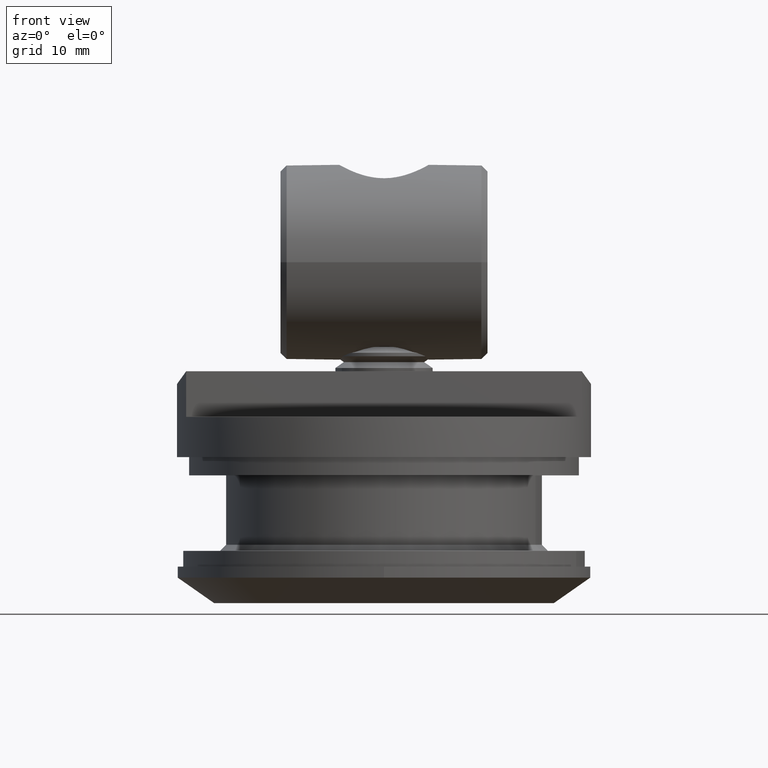
[diagram: clean part render]
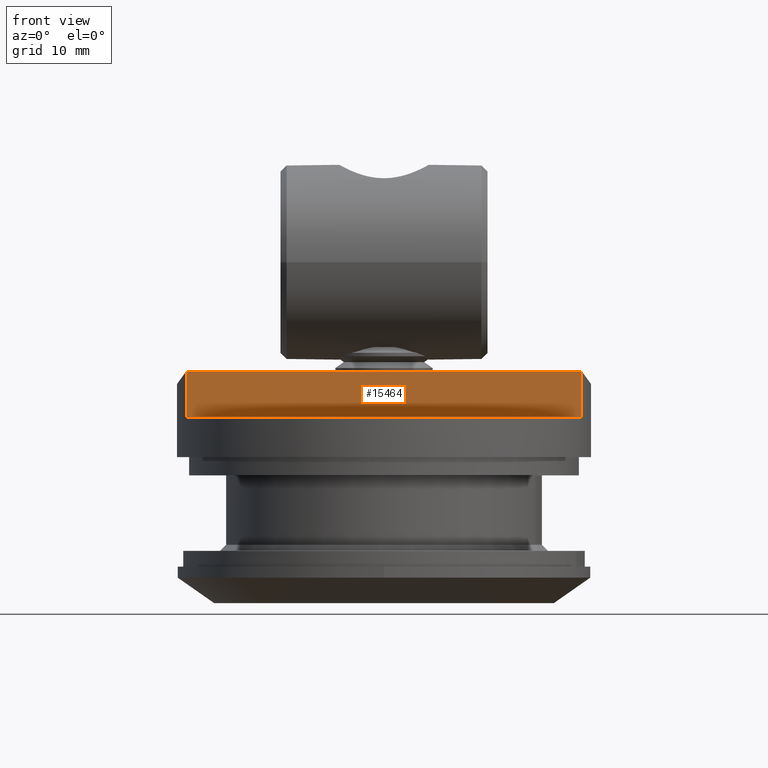
[diagram: same view with one face highlighted and labeled with its STEP entity id]
A machine part, front view. The second image highlights one B-rep face of the part: STEP entity #15464.
In plain terms, the highlighted planar face has unit normal (0, 1, 0).
Its self-contained STEP definition (entity closure, byte-faithful):
#283 = ORIENTED_EDGE ( 'NONE', *, *, #318, .T. ) ;
#318 = EDGE_CURVE ( 'NONE', #17113, #9149, #7985, .T. ) ;
#1011 = CARTESIAN_POINT ( 'NONE',  ( -17.00000000000000000, -5.000000000000000000, 7.043560762610400900 ) ) ;
#1575 = CARTESIAN_POINT ( 'NONE',  ( 16.24807680927191800, -5.000000000000008900, 8.300000000000000700 ) ) ;
#1731 = DIRECTION ( 'NONE',  ( -0.0000000000000000000, -0.0000000000000000000, -1.000000000000000000 ) ) ;
#2877 = VECTOR ( 'NONE', #5787, 1000.000000000000000 ) ;
#5787 = DIRECTION ( 'NONE',  ( -0.0000000000000000000, -0.0000000000000000000, -1.000000000000000000 ) ) ;
#6449 = PLANE ( 'NONE',  #17559 ) ;
#6908 = DIRECTION ( 'NONE',  ( -1.000000000000000000, 0.0000000000000000000, 0.0000000000000000000 ) ) ;
#7084 = VECTOR ( 'NONE', #6908, 1000.000000000000000 ) ;
#7373 = CARTESIAN_POINT ( 'NONE',  ( -16.24807680927192200, -5.000000000000000000, 3.299999999999999800 ) ) ;
#7769 = CARTESIAN_POINT ( 'NONE',  ( -16.24807680927192200, -5.000000000000000000, 7.043560762610401800 ) ) ;
#7985 = LINE ( 'NONE', #21166, #2877 ) ;
#8509 = LINE ( 'NONE', #7373, #11469 ) ;
#8959 = LINE ( 'NONE', #1575, #12189 ) ;
#9149 = VERTEX_POINT ( 'NONE', #19273 ) ;
#9358 = VERTEX_POINT ( 'NONE', #21312 ) ;
#9496 = LINE ( 'NONE', #1011, #7084 ) ;
#10908 = DIRECTION ( 'NONE',  ( 1.000000000000000000, 0.0000000000000000000, 0.0000000000000000000 ) ) ;
#11150 = ORIENTED_EDGE ( 'NONE', *, *, #15788, .T. ) ;
#11469 = VECTOR ( 'NONE', #10908, 1000.000000000000000 ) ;
#11684 = FACE_OUTER_BOUND ( 'NONE', #22344, .T. ) ;
#11850 = EDGE_CURVE ( 'NONE', #9149, #9358, #8509, .T. ) ;
#12189 = VECTOR ( 'NONE', #1731, 1000.000000000000000 ) ;
#12647 = VERTEX_POINT ( 'NONE', #18064 ) ;
#13080 = CARTESIAN_POINT ( 'NONE',  ( -16.24807680927192200, -5.000000000000000000, 8.300000000000000700 ) ) ;
#15464 = ADVANCED_FACE ( 'NONE', ( #11684 ), #6449, .F. ) ;
#15510 = EDGE_CURVE ( 'NONE', #12647, #9358, #8959, .T. ) ;
#15788 = EDGE_CURVE ( 'NONE', #12647, #17113, #9496, .T. ) ;
#16452 = ORIENTED_EDGE ( 'NONE', *, *, #15510, .F. ) ;
#16556 = DIRECTION ( 'NONE',  ( 0.0000000000000000000, -0.0000000000000000000, 1.000000000000000000 ) ) ;
#17113 = VERTEX_POINT ( 'NONE', #7769 ) ;
#17559 = AXIS2_PLACEMENT_3D ( 'NONE', #13080, #18507, #16556 ) ;
#18064 = CARTESIAN_POINT ( 'NONE',  ( 16.24807680927191500, -5.000000000000004400, 7.043560762610400900 ) ) ;
#18507 = DIRECTION ( 'NONE',  ( 0.0000000000000000000, 1.000000000000000000, 0.0000000000000000000 ) ) ;
#19273 = CARTESIAN_POINT ( 'NONE',  ( -16.24807680927192500, -5.000000000000000900, 3.299999999999999800 ) ) ;
#21166 = CARTESIAN_POINT ( 'NONE',  ( -16.24807680927192200, -5.000000000000000000, 8.300000000000000700 ) ) ;
#21312 = CARTESIAN_POINT ( 'NONE',  ( 16.24807680927191800, -5.000000000000008900, 3.299999999999999800 ) ) ;
#21711 = ORIENTED_EDGE ( 'NONE', *, *, #11850, .T. ) ;
#22344 = EDGE_LOOP ( 'NONE', ( #16452, #11150, #283, #21711 ) ) ;